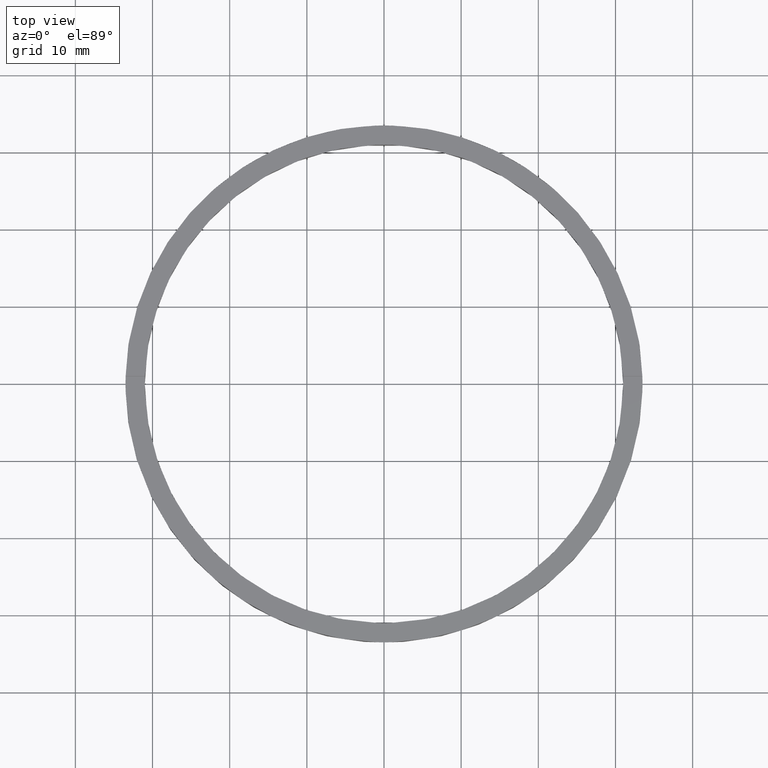
[diagram: clean part render]
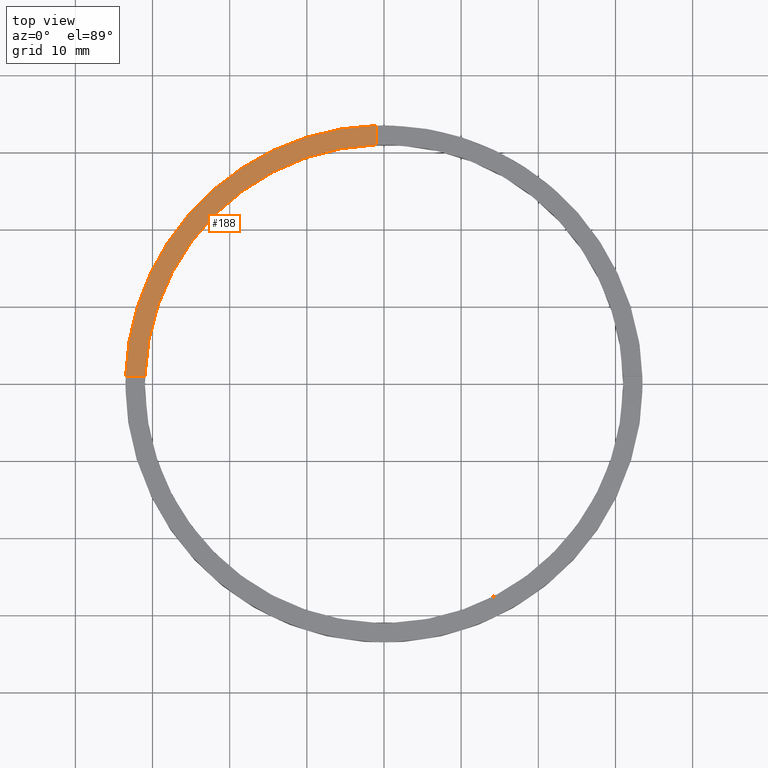
[diagram: same view with one face highlighted and labeled with its STEP entity id]
A machine part, top view. The second image highlights one B-rep face of the part: STEP entity #188.
In plain terms, the highlighted planar face has unit normal (0, 0, 1).
Its self-contained STEP definition (entity closure, byte-faithful):
#11 = CARTESIAN_POINT ( 'NONE',  ( -1.000000000000024647, 30.98386676965933617, 3.000000000000000000 ) ) ;
#28 = CARTESIAN_POINT ( 'NONE',  ( 0.000000000000000000, 0.000000000000000000, 3.000000000000000000 ) ) ;
#61 = EDGE_LOOP ( 'NONE', ( #198, #256, #274, #181 ) ) ;
#84 = VECTOR ( 'NONE', #699, 1000.000000000000000 ) ;
#96 = LINE ( 'NONE', #776, #84 ) ;
#165 = EDGE_CURVE ( 'NONE', #592, #674, #744, .T. ) ;
#181 = ORIENTED_EDGE ( 'NONE', *, *, #664, .F. ) ;
#186 = LINE ( 'NONE', #328, #193 ) ;
#188 = ADVANCED_FACE ( 'NONE', ( #480 ), #446, .T. ) ;
#193 = VECTOR ( 'NONE', #531, 1000.000000000000000 ) ;
#198 = ORIENTED_EDGE ( 'NONE', *, *, #553, .F. ) ;
#228 = DIRECTION ( 'NONE',  ( 0.000000000000000000, 0.000000000000000000, 1.000000000000000000 ) ) ;
#255 = DIRECTION ( 'NONE',  ( 0.000000000000000000, 0.000000000000000000, 1.000000000000000000 ) ) ;
#256 = ORIENTED_EDGE ( 'NONE', *, *, #165, .T. ) ;
#268 = CARTESIAN_POINT ( 'NONE',  ( -30.98386676965933617, 0.9999999999999740208, 3.000000000000000000 ) ) ;
#274 = ORIENTED_EDGE ( 'NONE', *, *, #276, .F. ) ;
#276 = EDGE_CURVE ( 'NONE', #730, #674, #186, .T. ) ;
#325 = VERTEX_POINT ( 'NONE', #11 ) ;
#328 = CARTESIAN_POINT ( 'NONE',  ( -23.50000000000018829, 0.9999999999999754641, 3.000000000000000000 ) ) ;
#355 = CIRCLE ( 'NONE', #403, 31.00000000000000000 ) ;
#362 = CARTESIAN_POINT ( 'NONE',  ( -33.48507130050644776, 0.9999999999999735767, 3.000000000000000000 ) ) ;
#399 = DIRECTION ( 'NONE',  ( 1.000000000000000000, 0.000000000000000000, -0.000000000000000000 ) ) ;
#403 = AXIS2_PLACEMENT_3D ( 'NONE', #28, #678, #429 ) ;
#429 = DIRECTION ( 'NONE',  ( 1.000000000000000000, 0.000000000000000000, 0.000000000000000000 ) ) ;
#432 = AXIS2_PLACEMENT_3D ( 'NONE', #572, #228, #651 ) ;
#446 = PLANE ( 'NONE',  #552 ) ;
#480 = FACE_OUTER_BOUND ( 'NONE', #61, .T. ) ;
#531 = DIRECTION ( 'NONE',  ( -1.000000000000000000, -1.951563910473907735E-16, 0.000000000000000000 ) ) ;
#552 = AXIS2_PLACEMENT_3D ( 'NONE', #645, #255, #399 ) ;
#553 = EDGE_CURVE ( 'NONE', #592, #325, #96, .T. ) ;
#572 = CARTESIAN_POINT ( 'NONE',  ( 0.000000000000000000, 0.000000000000000000, 3.000000000000000000 ) ) ;
#592 = VERTEX_POINT ( 'NONE', #758 ) ;
#645 = CARTESIAN_POINT ( 'NONE',  ( 0.000000000000000000, 0.000000000000000000, 3.000000000000000000 ) ) ;
#651 = DIRECTION ( 'NONE',  ( 1.000000000000000000, 0.000000000000000000, 0.000000000000000000 ) ) ;
#664 = EDGE_CURVE ( 'NONE', #325, #730, #355, .T. ) ;
#674 = VERTEX_POINT ( 'NONE', #362 ) ;
#678 = DIRECTION ( 'NONE',  ( 0.000000000000000000, 0.000000000000000000, 1.000000000000000000 ) ) ;
#699 = DIRECTION ( 'NONE',  ( -0.000000000000000000, -1.000000000000000000, -0.000000000000000000 ) ) ;
#730 = VERTEX_POINT ( 'NONE', #268 ) ;
#744 = CIRCLE ( 'NONE', #432, 33.50000000000000000 ) ;
#758 = CARTESIAN_POINT ( 'NONE',  ( -1.000000000000024647, 33.48507130050644065, 3.000000000000000000 ) ) ;
#776 = CARTESIAN_POINT ( 'NONE',  ( -1.000000000000024647, 23.50000000000000000, 3.000000000000000000 ) ) ;